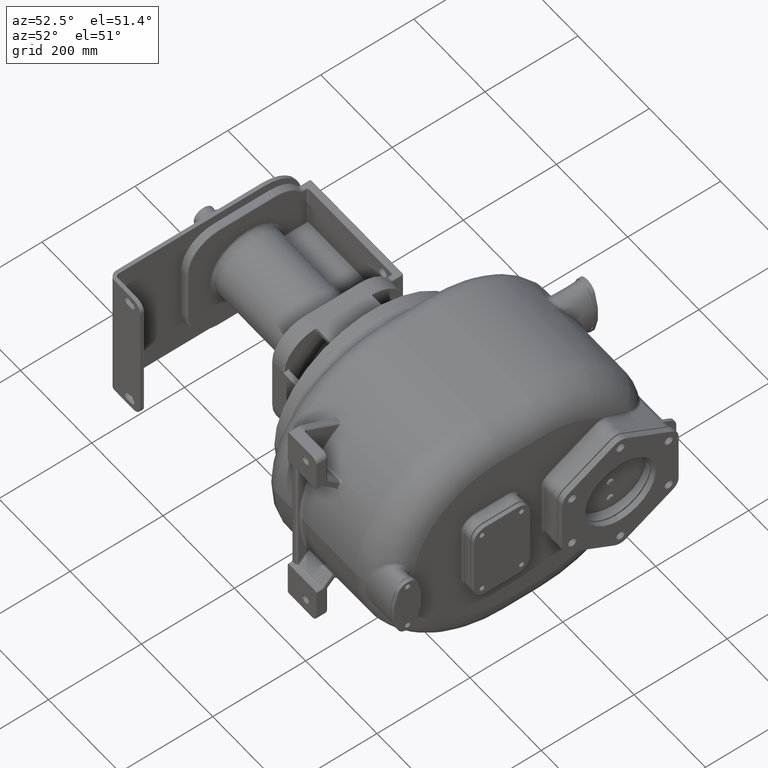
[diagram: clean part render]
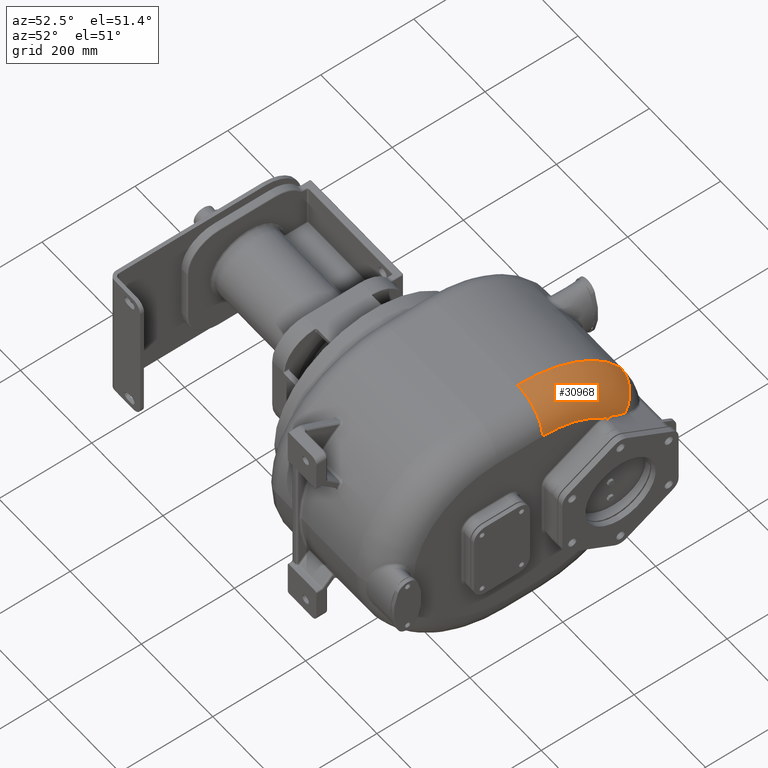
[diagram: same view with one face highlighted and labeled with its STEP entity id]
A machine part, auxiliary view. The second image highlights one B-rep face of the part: STEP entity #30968.
In plain terms, the highlighted toroidal blend (fillet) surface has major radius 194 mm and minor (blend) radius 70 mm.
Its self-contained STEP definition (entity closure, byte-faithful):
#5603=CARTESIAN_POINT('',(1.2E2,3.64E2,1.68E2));
#5604=DIRECTION('',(0.E0,-1.E0,0.E0));
#5605=DIRECTION('',(1.E0,0.E0,0.E0));
#5606=AXIS2_PLACEMENT_3D('',#5603,#5604,#5605);
#5640=CARTESIAN_POINT('',(1.9E2,3.64E2,-2.6E1));
#5641=DIRECTION('',(1.E0,0.E0,0.E0));
#5642=DIRECTION('',(0.E0,6.688058983865E-1,7.434370654490E-1));
#5643=AXIS2_PLACEMENT_3D('',#5640,#5641,#5642);
#5739=CARTESIAN_POINT('',(1.898552178946E2,5.043182339842E2,1.144029148375E2));
#5740=CARTESIAN_POINT('',(1.898592497828E2,5.040993251397E2,1.145331980878E2));
#5741=CARTESIAN_POINT('',(1.898674824740E2,5.036586669934E2,1.147879031520E2));
#5742=CARTESIAN_POINT('',(1.898801992028E2,5.029892939629E2,1.151524452538E2));
#5743=CARTESIAN_POINT('',(1.898931339787E2,5.023119902723E2,1.154993243792E2));
#5744=CARTESIAN_POINT('',(1.899061306759E2,5.016271160361E2,1.158284278058E2));
#5745=CARTESIAN_POINT('',(1.899190264584E2,5.009350001299E2,1.161396262356E2));
#5746=CARTESIAN_POINT('',(1.899316468849E2,5.002361393064E2,1.164327101693E2));
#5747=CARTESIAN_POINT('',(1.899438038138E2,4.995312896191E2,1.167074329346E2));
#5748=CARTESIAN_POINT('',(1.899553041735E2,4.988211771235E2,1.169635895901E2));
#5749=CARTESIAN_POINT('',(1.899659521070E2,4.981063663331E2,1.172010618894E2));
#5750=CARTESIAN_POINT('',(1.899755470507E2,4.973873977537E2,1.174197419887E2));
#5751=CARTESIAN_POINT('',(1.899838829256E2,4.966648155456E2,1.176195658452E2));
#5752=CARTESIAN_POINT('',(1.899907495654E2,4.959391309603E2,1.178005284479E2));
#5753=CARTESIAN_POINT('',(1.899959339986E2,4.952108622941E2,1.179626023982E2));
#5754=CARTESIAN_POINT('',(1.899992204890E2,4.944804720357E2,1.181057630238E2));
#5755=CARTESIAN_POINT('',(1.899999997963E2,4.939925560554E2,1.181885525692E2));
#5756=CARTESIAN_POINT('',(1.9E2,4.937483442830E2,1.182267907035E2));
#5758=CARTESIAN_POINT('',(1.2E2,5.265641410353E2,7.987209287375E1));
#5759=DIRECTION('',(0.E0,5.457324374936E-1,-8.379594898725E-1));
#5760=DIRECTION('',(0.E0,8.379594898725E-1,5.457324374936E-1));
#5761=AXIS2_PLACEMENT_3D('',#5758,#5759,#5760);
#5763=CARTESIAN_POINT('',(1.870251000919E2,5.434825401822E2,9.089042886316E1));
#5764=CARTESIAN_POINT('',(1.871483083946E2,5.426776763587E2,9.137679521577E1));
#5765=CARTESIAN_POINT('',(1.873850634479E2,5.410582300520E2,9.235513412875E1));
#5766=CARTESIAN_POINT('',(1.877120472792E2,5.385999822330E2,9.383932855384E1));
#5767=CARTESIAN_POINT('',(1.880116960657E2,5.361133354671E2,9.533969475468E1));
#5768=CARTESIAN_POINT('',(1.882849153448E2,5.335987894119E2,9.685580893191E1));
#5769=CARTESIAN_POINT('',(1.885326730430E2,5.310567686253E2,9.838730863605E1));
#5770=CARTESIAN_POINT('',(1.887559950903E2,5.284876966814E2,9.993381505251E1));
#5771=CARTESIAN_POINT('',(1.889559690767E2,5.258918501766E2,1.014950239692E2));
#5772=CARTESIAN_POINT('',(1.891336542860E2,5.232706313814E2,1.030699686687E2));
#5773=CARTESIAN_POINT('',(1.892901863832E2,5.206256068920E2,1.046575672023E2));
#5774=CARTESIAN_POINT('',(1.894267785798E2,5.179583115049E2,1.062567535268E2));
#5775=CARTESIAN_POINT('',(1.895447256910E2,5.152697986323E2,1.078667641377E2));
#5776=CARTESIAN_POINT('',(1.896453672245E2,5.125609455035E2,1.094869265642E2));
#5777=CARTESIAN_POINT('',(1.897300673011E2,5.098326862432E2,1.111165316726E2));
#5778=CARTESIAN_POINT('',(1.898002112158E2,5.070856821092E2,1.127550479638E2));
#5779=CARTESIAN_POINT('',(1.898381875948E2,5.052428185131E2,1.138526574383E2));
#5780=CARTESIAN_POINT('',(1.898552178946E2,5.043182339842E2,1.144029148375E2));
#5894=CARTESIAN_POINT('',(1.2E2,3.64E2,-2.6E1));
#5895=DIRECTION('',(1.E0,0.E0,0.E0));
#5896=DIRECTION('',(0.E0,8.379594898725E-1,5.457324374936E-1));
#5897=AXIS2_PLACEMENT_3D('',#5894,#5895,#5896);
#22502=CARTESIAN_POINT('',(1.2E2,3.639999999999E2,2.38E2));
#22504=VERTEX_POINT('',#22502);
#22627=CARTESIAN_POINT('',(1.9E2,3.64E2,1.68E2));
#22628=VERTEX_POINT('',#22627);
#22629=CARTESIAN_POINT('',(1.2E2,5.852213053263E2,1.180733634983E2));
#22630=VERTEX_POINT('',#22629);
#23021=VERTEX_POINT('',#5739);
#23022=VERTEX_POINT('',#5756);
#23025=VERTEX_POINT('',#5763);
#30952=CARTESIAN_POINT('',(1.2E2,3.64E2,-2.6E1));
#30953=DIRECTION('',(-1.E0,0.E0,0.E0));
#30954=DIRECTION('',(0.E0,8.418643003292E-1,5.396892622901E-1));
#30955=AXIS2_PLACEMENT_3D('',#30952,#30953,#30954);
#30956=TOROIDAL_SURFACE('',#30955,1.94E2,7.E1);
#30957=ORIENTED_EDGE('',*,*,#30942,.T.);
#30958=ORIENTED_EDGE('',*,*,#30791,.T.);
#30959=ORIENTED_EDGE('',*,*,#30770,.T.);
#30961=ORIENTED_EDGE('',*,*,#30960,.F.);
#30963=ORIENTED_EDGE('',*,*,#30962,.T.);
#30965=ORIENTED_EDGE('',*,*,#30964,.T.);
#30966=EDGE_LOOP('',(#30957,#30958,#30959,#30961,#30963,#30965));
#30967=FACE_OUTER_BOUND('',#30966,.F.);
#30968=ADVANCED_FACE('',(#30967),#30956,.T.);
#5607=CIRCLE('',#5606,7.E1);
#5644=CIRCLE('',#5643,1.94E2);
#5757=B_SPLINE_CURVE_WITH_KNOTS('',3,(#5739,#5740,#5741,#5742,#5743,#5744,#5745,
#5746,#5747,#5748,#5749,#5750,#5751,#5752,#5753,#5754,#5755,#5756),
.UNSPECIFIED.,.F.,.F.,(4,1,1,1,1,1,1,1,1,1,1,1,1,1,1,4),(0.E0,6.666666666667E-2,
1.333333333333E-1,2.E-1,2.666666666667E-1,3.333333333333E-1,4.E-1,
4.666666666667E-1,5.333333333333E-1,6.E-1,6.666666666667E-1,7.333333333333E-1,
8.E-1,8.666666666667E-1,9.333333333333E-1,1.E0),.UNSPECIFIED.);
#5762=CIRCLE('',#5761,7.E1);
#5781=B_SPLINE_CURVE_WITH_KNOTS('',3,(#5763,#5764,#5765,#5766,#5767,#5768,#5769,
#5770,#5771,#5772,#5773,#5774,#5775,#5776,#5777,#5778,#5779,#5780),
.UNSPECIFIED.,.F.,.F.,(4,1,1,1,1,1,1,1,1,1,1,1,1,1,1,4),(0.E0,6.666666666667E-2,
1.333333333333E-1,2.E-1,2.666666666667E-1,3.333333333333E-1,4.E-1,
4.666666666667E-1,5.333333333333E-1,6.E-1,6.666666666667E-1,7.333333333333E-1,
8.E-1,8.666666666667E-1,9.333333333333E-1,1.E0),.UNSPECIFIED.);
#5898=CIRCLE('',#5897,2.64E2);
#30770=EDGE_CURVE('',#22628,#22504,#5607,.T.);
#30791=EDGE_CURVE('',#23022,#22628,#5644,.T.);
#30942=EDGE_CURVE('',#23021,#23022,#5757,.T.);
#30960=EDGE_CURVE('',#22630,#22504,#5898,.T.);
#30962=EDGE_CURVE('',#22630,#23025,#5762,.T.);
#30964=EDGE_CURVE('',#23025,#23021,#5781,.T.);